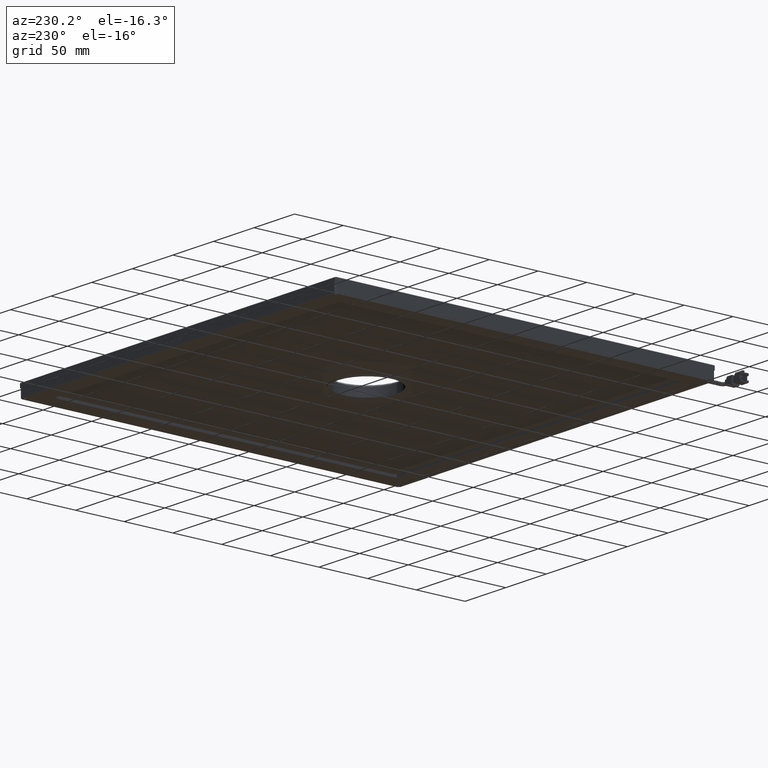
[diagram: clean part render]
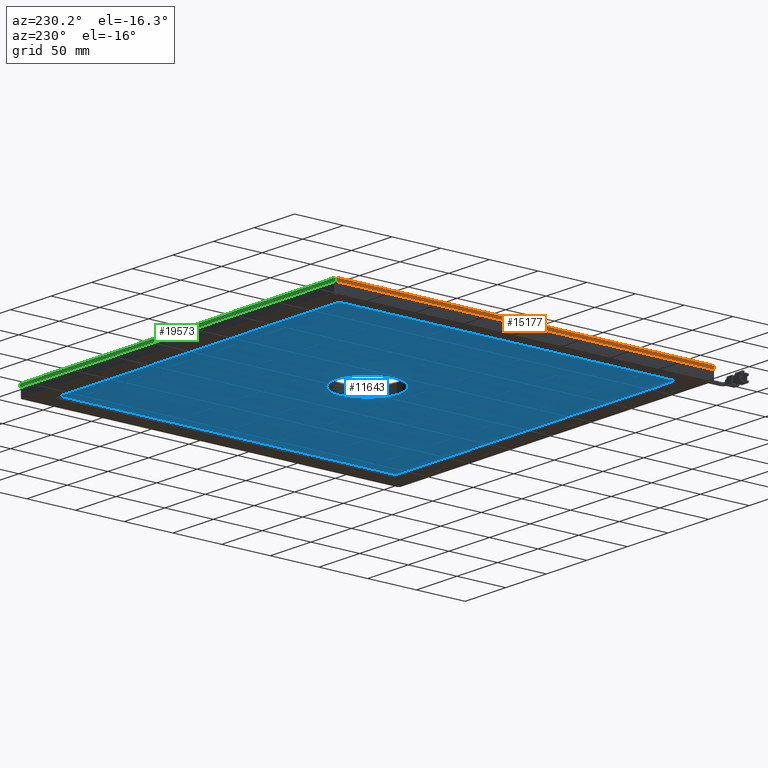
[diagram: same view with three faces highlighted in distinct colors, each labeled with its STEP entity id]
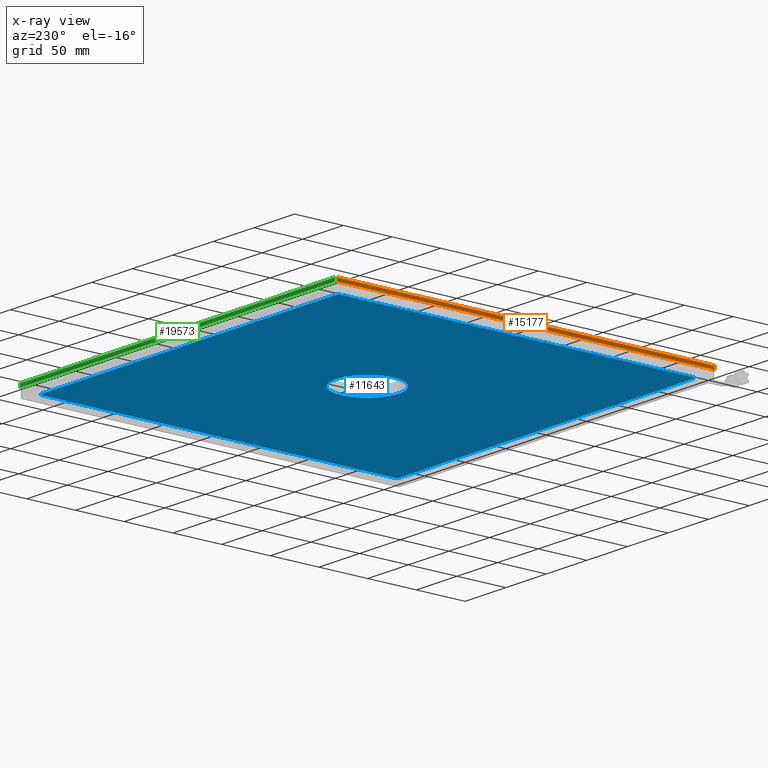
[diagram: x-ray of the same camera — body ghosted, the three highlighted faces saturated]
A machine part, auxiliary view with three faces highlighted in distinct colors.
The next image is the same camera in x-ray (body ghosted, the three faces saturated) — at least one of them is partly hidden behind the body in this view.
Their STEP definitions:

[orange] entity #15177 — the highlighted planar face has unit normal (1, 0, 0).
#263 = ORIENTED_EDGE ( 'NONE', *, *, #22097, .F. ) ;
#674 = CARTESIAN_POINT ( 'NONE',  ( -229.1484017985390300, -173.5770270270282400, 8.249999999999998200 ) ) ;
#2920 = ORIENTED_EDGE ( 'NONE', *, *, #15679, .T. ) ;
#2932 = EDGE_LOOP ( 'NONE', ( #19922, #263, #2920, #12564 ) ) ;
#3158 = VERTEX_POINT ( 'NONE', #10323 ) ;
#3679 = CARTESIAN_POINT ( 'NONE',  ( -229.1484017985390300, 214.4229729729716800, 8.249999999999998200 ) ) ;
#4395 = AXIS2_PLACEMENT_3D ( 'NONE', #13643, #18739, #8593 ) ;
#4695 = FACE_OUTER_BOUND ( 'NONE', #2932, .T. ) ;
#5152 = VERTEX_POINT ( 'NONE', #7525 ) ;
#5318 = CARTESIAN_POINT ( 'NONE',  ( -229.1484017985390300, -173.5770270270282100, 4.249999999999996400 ) ) ;
#5902 = VERTEX_POINT ( 'NONE', #8550 ) ;
#6366 = DIRECTION ( 'NONE',  ( 0.0000000000000000000, -1.000000000000000000, -0.0000000000000000000 ) ) ;
#6779 = LINE ( 'NONE', #7895, #14011 ) ;
#7525 = CARTESIAN_POINT ( 'NONE',  ( -229.1484017985390300, 214.4229729729717600, 7.749999999999998200 ) ) ;
#7591 = VECTOR ( 'NONE', #6366, 1000.000000000000000 ) ;
#7895 = CARTESIAN_POINT ( 'NONE',  ( -229.1484017985390800, 215.4229729729718800, 4.249999999999998200 ) ) ;
#8550 = CARTESIAN_POINT ( 'NONE',  ( -229.1484017985390300, 214.4229729729717100, 4.249999999999996400 ) ) ;
#8593 = DIRECTION ( 'NONE',  ( 0.0000000000000000000, 0.0000000000000000000, -1.000000000000000000 ) ) ;
#9391 = DIRECTION ( 'NONE',  ( 0.0000000000000000000, 0.0000000000000000000, -1.000000000000000000 ) ) ;
#10323 = CARTESIAN_POINT ( 'NONE',  ( -229.1484017985390000, -173.5770270270283200, 7.749999999999994700 ) ) ;
#10429 = EDGE_CURVE ( 'NONE', #5152, #3158, #21713, .T. ) ;
#11472 = LINE ( 'NONE', #674, #14955 ) ;
#11562 = EDGE_CURVE ( 'NONE', #3158, #19934, #11472, .T. ) ;
#12564 = ORIENTED_EDGE ( 'NONE', *, *, #11562, .F. ) ;
#13643 = CARTESIAN_POINT ( 'NONE',  ( -229.1484017985390300, -174.5770270270281200, 8.249999999999998200 ) ) ;
#14011 = VECTOR ( 'NONE', #21593, 1000.000000000000000 ) ;
#14186 = LINE ( 'NONE', #3679, #21113 ) ;
#14955 = VECTOR ( 'NONE', #9391, 1000.000000000000000 ) ;
#15177 = ADVANCED_FACE ( 'NONE', ( #4695 ), #21763, .F. ) ;
#15679 = EDGE_CURVE ( 'NONE', #5902, #19934, #6779, .T. ) ;
#18245 = CARTESIAN_POINT ( 'NONE',  ( -229.1484017985390300, -174.5770270270281200, 7.749999999999998200 ) ) ;
#18739 = DIRECTION ( 'NONE',  ( 1.000000000000000000, 0.0000000000000000000, 0.0000000000000000000 ) ) ;
#18912 = DIRECTION ( 'NONE',  ( -0.0000000000000000000, -0.0000000000000000000, 1.000000000000000000 ) ) ;
#19922 = ORIENTED_EDGE ( 'NONE', *, *, #10429, .F. ) ;
#19934 = VERTEX_POINT ( 'NONE', #5318 ) ;
#21113 = VECTOR ( 'NONE', #18912, 1000.000000000000000 ) ;
#21593 = DIRECTION ( 'NONE',  ( -0.0000000000000000000, -1.000000000000000000, -0.0000000000000000000 ) ) ;
#21713 = LINE ( 'NONE', #18245, #7591 ) ;
#21763 = PLANE ( 'NONE',  #4395 ) ;
#22097 = EDGE_CURVE ( 'NONE', #5902, #5152, #14186, .T. ) ;

[blue] entity #11643 — the highlighted planar face has unit normal (0, -0, 1).
#505 = DIRECTION ( 'NONE',  ( 1.000000000000000000, 0.0000000000000000000, 0.0000000000000000000 ) ) ;
#563 = CARTESIAN_POINT ( 'NONE',  ( -34.14840179853907600, 20.42297297297170300, -1.750000000000003300 ) ) ;
#579 = VERTEX_POINT ( 'NONE', #7640 ) ;
#609 = AXIS2_PLACEMENT_3D ( 'NONE', #7809, #9540, #21453 ) ;
#803 = VERTEX_POINT ( 'NONE', #7336 ) ;
#1383 = FACE_BOUND ( 'NONE', #17522, .T. ) ;
#1899 = EDGE_CURVE ( 'NONE', #13080, #15521, #6815, .T. ) ;
#2030 = CARTESIAN_POINT ( 'NONE',  ( 146.8515982014608900, -160.5770270270282900, -1.750000000000003300 ) ) ;
#2485 = VERTEX_POINT ( 'NONE', #11067 ) ;
#2517 = CARTESIAN_POINT ( 'NONE',  ( 149.8515982014608900, 204.4229729729716500, -1.750000000000003300 ) ) ;
#2851 = DIRECTION ( 'NONE',  ( -1.000000000000000000, -0.0000000000000000000, 0.0000000000000000000 ) ) ;
#2981 = DIRECTION ( 'NONE',  ( -0.0000000000000000000, -0.0000000000000000000, 1.000000000000000000 ) ) ;
#3678 = ORIENTED_EDGE ( 'NONE', *, *, #7472, .F. ) ;
#3868 = CARTESIAN_POINT ( 'NONE',  ( -2.048401798539073200, 20.42297297297170300, -1.750000000000003300 ) ) ;
#3932 = DIRECTION ( 'NONE',  ( -0.0000000000000000000, -0.0000000000000000000, 1.000000000000000000 ) ) ;
#4198 = DIRECTION ( 'NONE',  ( 0.0000000000000000000, 1.000000000000000000, 0.0000000000000000000 ) ) ;
#4203 = DIRECTION ( 'NONE',  ( 1.000000000000000000, 0.0000000000000000000, -0.0000000000000000000 ) ) ;
#4414 = EDGE_CURVE ( 'NONE', #803, #2485, #15367, .T. ) ;
#4439 = CARTESIAN_POINT ( 'NONE',  ( 146.8515982014608900, 201.4229729729716800, -1.750000000000003300 ) ) ;
#4477 = ORIENTED_EDGE ( 'NONE', *, *, #1899, .F. ) ;
#4589 = DIRECTION ( 'NONE',  ( -1.000000000000000000, 0.0000000000000000000, 0.0000000000000000000 ) ) ;
#4594 = AXIS2_PLACEMENT_3D ( 'NONE', #11315, #11381, #16681 ) ;
#4669 = CARTESIAN_POINT ( 'NONE',  ( -218.1484017985391100, 204.4229729729716500, -1.750000000000003300 ) ) ;
#4745 = DIRECTION ( 'NONE',  ( -0.0000000000000000000, -1.000000000000000000, -0.0000000000000000000 ) ) ;
#5012 = CIRCLE ( 'NONE', #9561, 32.10000000000000100 ) ;
#5223 = AXIS2_PLACEMENT_3D ( 'NONE', #563, #15876, #16006 ) ;
#5478 = LINE ( 'NONE', #11256, #13440 ) ;
#5647 = CARTESIAN_POINT ( 'NONE',  ( -34.14840179853907600, 20.42297297297170300, -1.750000000000003300 ) ) ;
#5674 = CARTESIAN_POINT ( 'NONE',  ( -215.1484017985391100, 201.4229729729716500, -1.750000000000003300 ) ) ;
#6032 = PLANE ( 'NONE',  #4594 ) ;
#6799 = CIRCLE ( 'NONE', #15439, 3.000000000000002700 ) ;
#6815 = CIRCLE ( 'NONE', #5223, 32.10000000000000100 ) ;
#6938 = CARTESIAN_POINT ( 'NONE',  ( 149.8515982014608900, -160.5770270270282900, -1.750000000000003300 ) ) ;
#6987 = VERTEX_POINT ( 'NONE', #11662 ) ;
#7336 = CARTESIAN_POINT ( 'NONE',  ( -218.1484017985391100, 201.4229729729716500, -1.750000000000003300 ) ) ;
#7472 = EDGE_CURVE ( 'NONE', #15521, #13080, #5012, .T. ) ;
#7640 = CARTESIAN_POINT ( 'NONE',  ( -215.1484017985391100, 204.4229729729716500, -1.750000000000003300 ) ) ;
#7721 = VERTEX_POINT ( 'NONE', #12312 ) ;
#7735 = VECTOR ( 'NONE', #4203, 1000.000000000000000 ) ;
#7809 = CARTESIAN_POINT ( 'NONE',  ( -215.1484017985391100, -160.5770270270283200, -1.750000000000003300 ) ) ;
#8438 = EDGE_CURVE ( 'NONE', #7721, #579, #5478, .T. ) ;
#8650 = DIRECTION ( 'NONE',  ( -1.000000000000000000, 0.0000000000000000000, 0.0000000000000000000 ) ) ;
#8931 = DIRECTION ( 'NONE',  ( 0.0000000000000000000, 0.0000000000000000000, -1.000000000000000000 ) ) ;
#9097 = CIRCLE ( 'NONE', #14306, 3.000000000000002700 ) ;
#9323 = CARTESIAN_POINT ( 'NONE',  ( -66.24840179853907800, 20.42297297297170600, -1.750000000000003300 ) ) ;
#9540 = DIRECTION ( 'NONE',  ( -0.0000000000000000000, -0.0000000000000000000, 1.000000000000000000 ) ) ;
#9561 = AXIS2_PLACEMENT_3D ( 'NONE', #5647, #8931, #505 ) ;
#9572 = ORIENTED_EDGE ( 'NONE', *, *, #15610, .F. ) ;
#9932 = ORIENTED_EDGE ( 'NONE', *, *, #4414, .F. ) ;
#10074 = EDGE_CURVE ( 'NONE', #11895, #18641, #12166, .T. ) ;
#10290 = DIRECTION ( 'NONE',  ( -0.0000000000000000000, -0.0000000000000000000, 1.000000000000000000 ) ) ;
#10856 = LINE ( 'NONE', #2517, #21267 ) ;
#11067 = CARTESIAN_POINT ( 'NONE',  ( -218.1484017985391100, -160.5770270270283200, -1.750000000000003300 ) ) ;
#11256 = CARTESIAN_POINT ( 'NONE',  ( -218.1484017985391100, 204.4229729729716800, -1.750000000000003300 ) ) ;
#11315 = CARTESIAN_POINT ( 'NONE',  ( -218.1484017985391100, 204.4229729729716500, -1.750000000000003300 ) ) ;
#11381 = DIRECTION ( 'NONE',  ( 0.0000000000000000000, -0.0000000000000000000, 1.000000000000000000 ) ) ;
#11487 = EDGE_CURVE ( 'NONE', #579, #803, #9097, .T. ) ;
#11643 = ADVANCED_FACE ( 'NONE', ( #17358, #1383 ), #6032, .F. ) ;
#11662 = CARTESIAN_POINT ( 'NONE',  ( -215.1484017985391100, -163.5770270270283500, -1.750000000000003300 ) ) ;
#11895 = VERTEX_POINT ( 'NONE', #13828 ) ;
#12166 = CIRCLE ( 'NONE', #19005, 3.000000000000002700 ) ;
#12177 = ORIENTED_EDGE ( 'NONE', *, *, #20793, .F. ) ;
#12312 = CARTESIAN_POINT ( 'NONE',  ( 146.8515982014608900, 204.4229729729716800, -1.750000000000003300 ) ) ;
#12433 = ORIENTED_EDGE ( 'NONE', *, *, #16626, .F. ) ;
#12468 = CARTESIAN_POINT ( 'NONE',  ( 149.8515982014608900, 201.4229729729717100, -1.750000000000003300 ) ) ;
#12641 = CARTESIAN_POINT ( 'NONE',  ( -218.1484017985391100, -163.5770270270283500, -1.750000000000003300 ) ) ;
#12672 = VECTOR ( 'NONE', #4745, 1000.000000000000000 ) ;
#13080 = VERTEX_POINT ( 'NONE', #3868 ) ;
#13440 = VECTOR ( 'NONE', #2851, 1000.000000000000000 ) ;
#13828 = CARTESIAN_POINT ( 'NONE',  ( 146.8515982014608900, -163.5770270270283200, -1.750000000000003300 ) ) ;
#14227 = DIRECTION ( 'NONE',  ( -1.000000000000000000, 0.0000000000000000000, 0.0000000000000000000 ) ) ;
#14306 = AXIS2_PLACEMENT_3D ( 'NONE', #5674, #3932, #14227 ) ;
#15043 = ORIENTED_EDGE ( 'NONE', *, *, #11487, .F. ) ;
#15367 = LINE ( 'NONE', #4669, #12672 ) ;
#15439 = AXIS2_PLACEMENT_3D ( 'NONE', #4439, #2981, #4589 ) ;
#15483 = ORIENTED_EDGE ( 'NONE', *, *, #8438, .F. ) ;
#15521 = VERTEX_POINT ( 'NONE', #9323 ) ;
#15610 = EDGE_CURVE ( 'NONE', #19518, #7721, #6799, .T. ) ;
#15876 = DIRECTION ( 'NONE',  ( 0.0000000000000000000, 0.0000000000000000000, -1.000000000000000000 ) ) ;
#16006 = DIRECTION ( 'NONE',  ( 1.000000000000000000, 0.0000000000000000000, 0.0000000000000000000 ) ) ;
#16524 = LINE ( 'NONE', #12641, #7735 ) ;
#16626 = EDGE_CURVE ( 'NONE', #2485, #6987, #18994, .T. ) ;
#16681 = DIRECTION ( 'NONE',  ( 1.000000000000000000, 0.0000000000000000000, -0.0000000000000000000 ) ) ;
#17358 = FACE_OUTER_BOUND ( 'NONE', #19165, .T. ) ;
#17522 = EDGE_LOOP ( 'NONE', ( #4477, #3678 ) ) ;
#17627 = ORIENTED_EDGE ( 'NONE', *, *, #10074, .F. ) ;
#17725 = EDGE_CURVE ( 'NONE', #18641, #19518, #10856, .T. ) ;
#18641 = VERTEX_POINT ( 'NONE', #6938 ) ;
#18994 = CIRCLE ( 'NONE', #609, 3.000000000000002700 ) ;
#19005 = AXIS2_PLACEMENT_3D ( 'NONE', #2030, #10290, #8650 ) ;
#19165 = EDGE_LOOP ( 'NONE', ( #15043, #15483, #9572, #19236, #17627, #12177, #12433, #9932 ) ) ;
#19236 = ORIENTED_EDGE ( 'NONE', *, *, #17725, .F. ) ;
#19518 = VERTEX_POINT ( 'NONE', #12468 ) ;
#20793 = EDGE_CURVE ( 'NONE', #6987, #11895, #16524, .T. ) ;
#21267 = VECTOR ( 'NONE', #4198, 1000.000000000000000 ) ;
#21453 = DIRECTION ( 'NONE',  ( -1.000000000000000000, 0.0000000000000000000, 0.0000000000000000000 ) ) ;

[green] entity #19573 — the highlighted planar face has unit normal (0, -1, 0).
#353 = LINE ( 'NONE', #12931, #9406 ) ;
#1586 = AXIS2_PLACEMENT_3D ( 'NONE', #15864, #13968, #3901 ) ;
#2250 = EDGE_CURVE ( 'NONE', #16874, #18018, #11038, .T. ) ;
#2407 = ORIENTED_EDGE ( 'NONE', *, *, #14825, .F. ) ;
#3141 = LINE ( 'NONE', #12185, #11116 ) ;
#3901 = DIRECTION ( 'NONE',  ( 1.000000000000000000, 1.423362852083534100E-016, 0.0000000000000000000 ) ) ;
#5433 = DIRECTION ( 'NONE',  ( -0.0000000000000000000, 0.0000000000000000000, 1.000000000000000000 ) ) ;
#5522 = CARTESIAN_POINT ( 'NONE',  ( -229.1484017985390300, 215.4229729729719300, 4.249999999999998200 ) ) ;
#6078 = DIRECTION ( 'NONE',  ( -1.000000000000000000, -1.423362852083534100E-016, -0.0000000000000000000 ) ) ;
#6701 = CARTESIAN_POINT ( 'NONE',  ( -228.1484017985389100, 215.4229729729718800, 7.750000000000001800 ) ) ;
#7040 = PLANE ( 'NONE',  #1586 ) ;
#8991 = DIRECTION ( 'NONE',  ( 0.0000000000000000000, -0.0000000000000000000, -1.000000000000000000 ) ) ;
#9344 = LINE ( 'NONE', #15657, #17610 ) ;
#9406 = VECTOR ( 'NONE', #6078, 1000.000000000000000 ) ;
#10152 = ORIENTED_EDGE ( 'NONE', *, *, #2250, .T. ) ;
#10377 = CARTESIAN_POINT ( 'NONE',  ( 159.8515982014609400, 215.4229729729719300, 4.249999999999996400 ) ) ;
#11038 = LINE ( 'NONE', #5522, #16922 ) ;
#11116 = VECTOR ( 'NONE', #8991, 1000.000000000000000 ) ;
#11178 = VERTEX_POINT ( 'NONE', #6701 ) ;
#11261 = VERTEX_POINT ( 'NONE', #17005 ) ;
#11397 = ORIENTED_EDGE ( 'NONE', *, *, #14320, .F. ) ;
#12185 = CARTESIAN_POINT ( 'NONE',  ( -228.1484017985389100, 215.4229729729718800, 8.249999999999998200 ) ) ;
#12931 = CARTESIAN_POINT ( 'NONE',  ( 160.8515982014610000, 215.4229729729719300, 7.750000000000033800 ) ) ;
#13968 = DIRECTION ( 'NONE',  ( 1.423362852083534100E-016, -1.000000000000000000, 0.0000000000000000000 ) ) ;
#14320 = EDGE_CURVE ( 'NONE', #16874, #11261, #9344, .T. ) ;
#14760 = EDGE_LOOP ( 'NONE', ( #15360, #11397, #10152, #2407 ) ) ;
#14787 = FACE_OUTER_BOUND ( 'NONE', #14760, .T. ) ;
#14825 = EDGE_CURVE ( 'NONE', #11178, #18018, #3141, .T. ) ;
#15322 = CARTESIAN_POINT ( 'NONE',  ( -228.1484017985389100, 215.4229729729718800, 4.249999999999996400 ) ) ;
#15360 = ORIENTED_EDGE ( 'NONE', *, *, #21876, .F. ) ;
#15657 = CARTESIAN_POINT ( 'NONE',  ( 159.8515982014609400, 215.4229729729719300, 8.249999999999998200 ) ) ;
#15864 = CARTESIAN_POINT ( 'NONE',  ( 160.8515982014610000, 215.4229729729719300, 8.249999999999998200 ) ) ;
#16874 = VERTEX_POINT ( 'NONE', #10377 ) ;
#16922 = VECTOR ( 'NONE', #20853, 1000.000000000000000 ) ;
#17005 = CARTESIAN_POINT ( 'NONE',  ( 159.8515982014610000, 215.4229729729718800, 7.750000000000032900 ) ) ;
#17610 = VECTOR ( 'NONE', #5433, 1000.000000000000000 ) ;
#18018 = VERTEX_POINT ( 'NONE', #15322 ) ;
#19573 = ADVANCED_FACE ( 'NONE', ( #14787 ), #7040, .F. ) ;
#20853 = DIRECTION ( 'NONE',  ( -1.000000000000000000, -0.0000000000000000000, 0.0000000000000000000 ) ) ;
#21876 = EDGE_CURVE ( 'NONE', #11261, #11178, #353, .T. ) ;